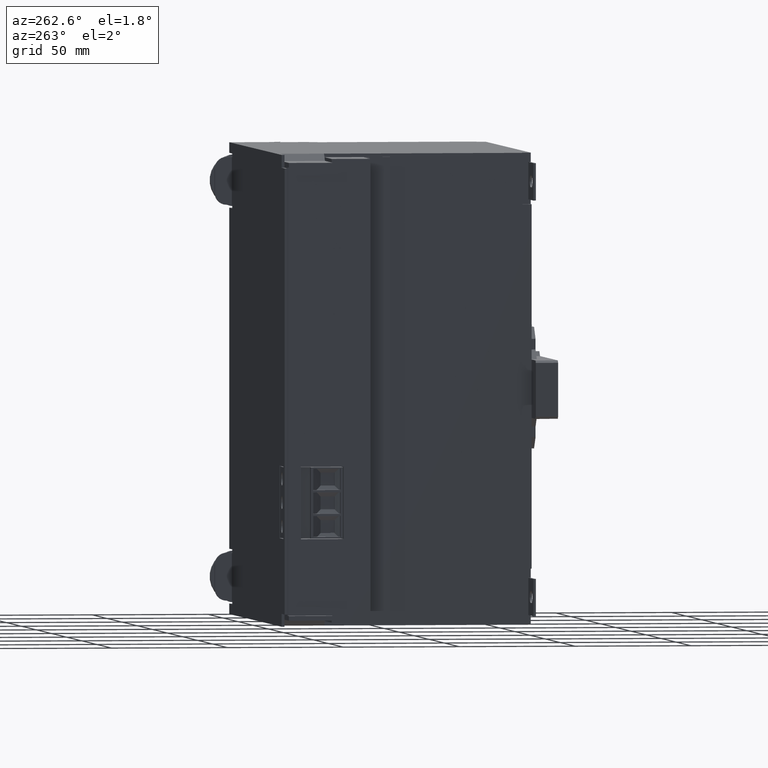
[diagram: clean part render]
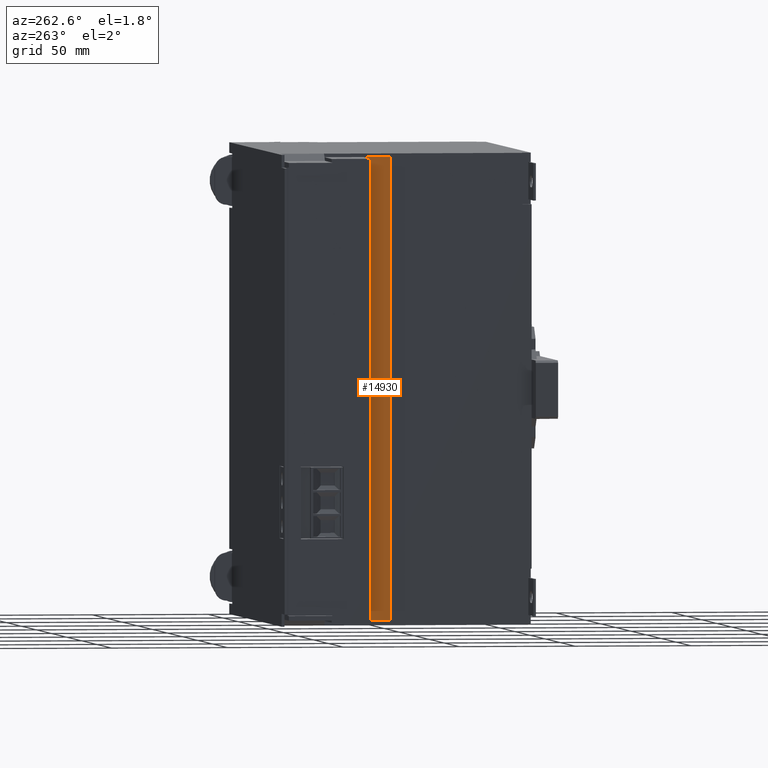
[diagram: same view with one face highlighted and labeled with its STEP entity id]
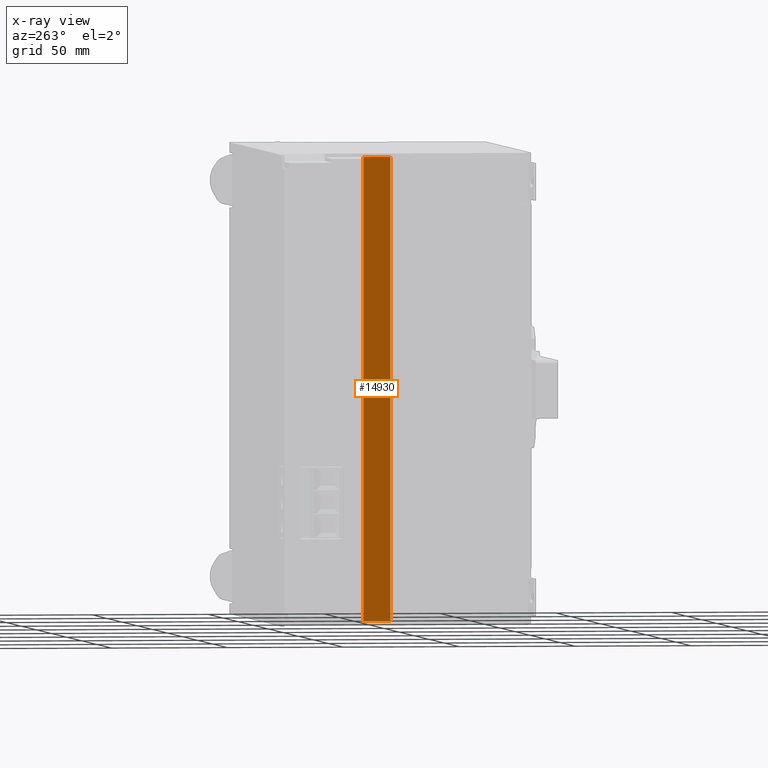
[diagram: x-ray of the same camera — body ghosted, the highlighted face saturated]
A machine part, auxiliary view. The second image highlights one B-rep face of the part: STEP entity #14930.
The next image is the same camera in x-ray: the body ghosted, the highlighted face saturated — about 0% of this face is hidden behind the body in this view.
In plain terms, the highlighted planar face has unit normal (-1, 0, 0).
Its self-contained STEP definition (entity closure, byte-faithful):
#13770=CARTESIAN_POINT('',(91.,60.15,2.));
#13780=VERTEX_POINT('',#13770);
#13810=CARTESIAN_POINT('',(91.,0.,2.));
#13820=DIRECTION('',(-0.,1.,0.));
#13830=VECTOR('',#13820,1.);
#13840=LINE('',#13810,#13830);
#13850=CARTESIAN_POINT('',(91.,71.8,2.));
#13860=VERTEX_POINT('',#13850);
#13870=EDGE_CURVE('',#13780,#13860,#13840,.T.);
#14130=CARTESIAN_POINT('',(-67.,71.8,2.));
#14140=DIRECTION('',(1.,0.,0.));
#14150=VECTOR('',#14140,1.);
#14160=LINE('',#14130,#14150);
#14170=CARTESIAN_POINT('',(-107.5,71.8,2.));
#14180=VERTEX_POINT('',#14170);
#14190=EDGE_CURVE('',#14180,#13860,#14160,.T.);
#14700=CARTESIAN_POINT('',(0.,75.15,2.));
#14710=DIRECTION('',(0.,0.,1.));
#14720=DIRECTION('',(1.,0.,0.));
#14730=AXIS2_PLACEMENT_3D('',#14700,#14710,#14720);
#14740=PLANE('',#14730);
#14750=ORIENTED_EDGE('',*,*,#13870,.T.);
#14760=CARTESIAN_POINT('',(0.,60.15,2.));
#14770=DIRECTION('',(1.,-0.,-0.));
#14780=VECTOR('',#14770,1.);
#14790=LINE('',#14760,#14780);
#14800=CARTESIAN_POINT('',(-107.5,60.15,2.));
#14810=VERTEX_POINT('',#14800);
#14820=EDGE_CURVE('',#14810,#13780,#14790,.T.);
#14830=ORIENTED_EDGE('',*,*,#14820,.T.);
#14840=CARTESIAN_POINT('',(-107.5,0.,2.));
#14850=DIRECTION('',(0.,-1.,0.));
#14860=VECTOR('',#14850,1.);
#14870=LINE('',#14840,#14860);
#14880=EDGE_CURVE('',#14180,#14810,#14870,.T.);
#14890=ORIENTED_EDGE('',*,*,#14880,.T.);
#14900=ORIENTED_EDGE('',*,*,#14190,.F.);
#14910=EDGE_LOOP('',(#14900,#14890,#14830,#14750));
#14920=FACE_OUTER_BOUND('',#14910,.T.);
#14930=ADVANCED_FACE('',(#14920),#14740,.T.);